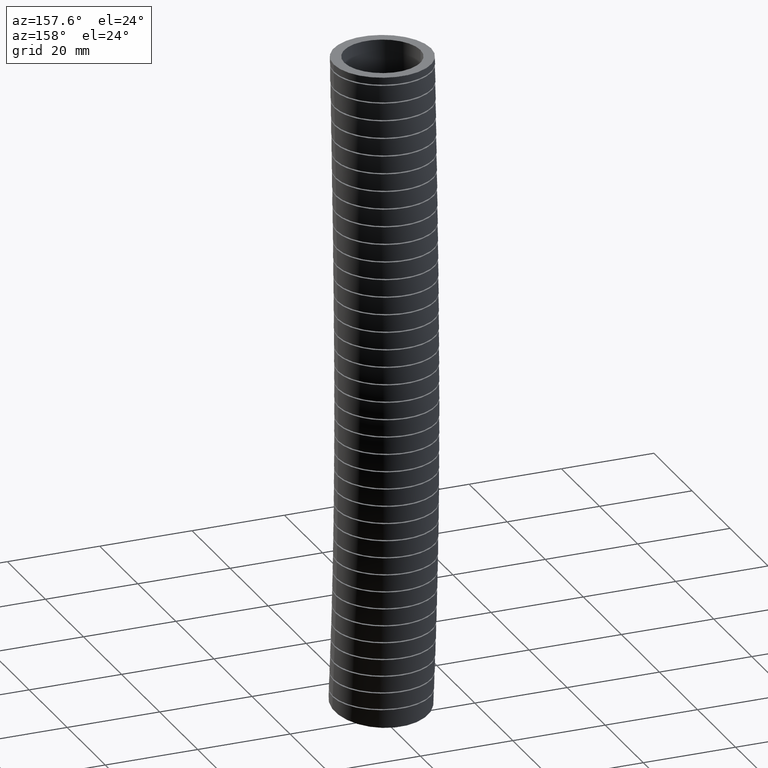
[diagram: clean part render]
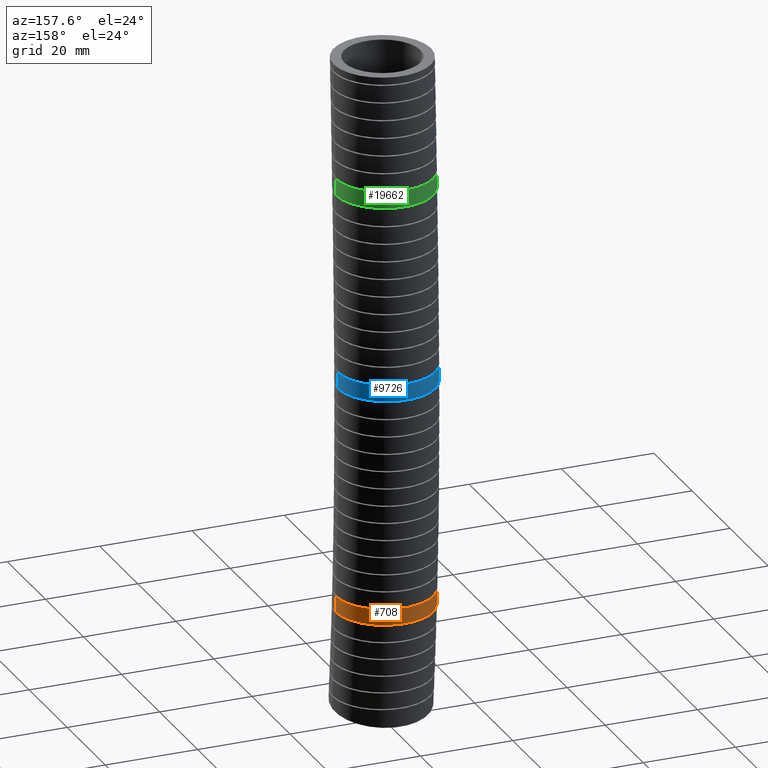
[diagram: same view with three faces highlighted in distinct colors, each labeled with its STEP entity id]
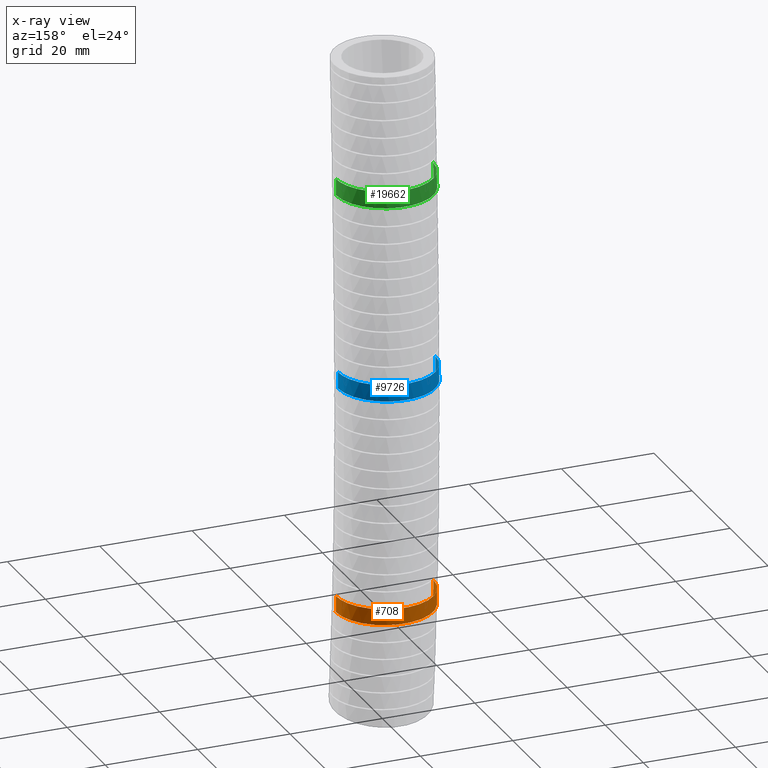
[diagram: x-ray of the same camera — body ghosted, the three highlighted faces saturated]
A machine part, auxiliary view with three faces highlighted in distinct colors.
The next image is the same camera in x-ray (body ghosted, the three faces saturated) — at least one of them is partly hidden behind the body in this view.
Their STEP definitions:

[orange] entity #708 — the highlighted face is a freeform B-spline surface patch.
#339 = EDGE_CURVE ( 'NONE', #343, #346, #17657, .T. ) ;
#340 = EDGE_CURVE ( 'NONE', #345, #342, #17659, .T. ) ;
#342 = VERTEX_POINT ( 'NONE', #17759 ) ;
#343 = VERTEX_POINT ( 'NONE', #17758 ) ;
#345 = VERTEX_POINT ( 'NONE', #17757 ) ;
#346 = VERTEX_POINT ( 'NONE', #17756 ) ;
#548 = ORIENTED_EDGE ( 'NONE', *, *, #339, .T. ) ;
#549 = EDGE_CURVE ( 'NONE', #346, #342, #8774, .T. ) ;
#562 = ORIENTED_EDGE ( 'NONE', *, *, #549, .T. ) ;
#708 = ADVANCED_FACE ( 'NONE', ( #10295 ), #10381, .T. ) ;
#855 = ORIENTED_EDGE ( 'NONE', *, *, #340, .F. ) ;
#856 = ORIENTED_EDGE ( 'NONE', *, *, #857, .T. ) ;
#857 = EDGE_CURVE ( 'NONE', #345, #343, #12175, .T. ) ;
#858 = EDGE_LOOP ( 'NONE', ( #855, #856, #548, #562 ) ) ;
#8774 = B_SPLINE_CURVE_WITH_KNOTS ( 'NONE', 3,
 ( #8838, #8837, #8836, #8835, #8834, #8833, #8832, #8831, #8830, #8829, #8828, #8827, #8826, #8825, #8824, #8823, #8822, #8821, #8820, #8819, #8818, #8817, #8816, #8815, #8814, #8813, #8812, #8811, #8810, #8809, #8808, #8807, #8806, #8805, #8804, #8803, #8802, #8801, #8800, #8799, #8798, #8797, #8796, #8795, #8794, #8793, #8792, #8791, #8790 ),
 .UNSPECIFIED., .F., .F.,
 ( 4, 2, 2, 2, 2, 2, 2, 2, 2, 2, 2, 2, 2, 2, 2, 2, 2, 2, 1, 2, 2, 2, 2, 2, 4 ),
 ( 0.0000000000000000000, 0.001041147008987531500, 0.002082294017975063900, 0.004164588035950128600, 0.005205735044937659000, 0.006246882053925190300, 0.008329176071900248500, 0.009370323080887773800, 0.01041147008987530100, 0.01249376410785035600, 0.01457605812582541000, 0.01561720513481293500, 0.01665835214380046200, 0.01874064616177552000, 0.01978179317076304800, 0.02082294017975057400, 0.02290523419772563100, 0.02394638120671315600, 0.02498752821570067800, 0.02602867522468820300, 0.02706982223367572800, 0.02915211625165077900, 0.03019326326063830800, 0.03123441026962583300, 0.03331670428760089000 ),
 .UNSPECIFIED. ) ;
#8790 = CARTESIAN_POINT ( 'NONE',  ( -0.4150000000000000900, 0.04081701023468729800, -4.707395241627943400 ) ) ;
#8791 = CARTESIAN_POINT ( 'NONE',  ( -0.4150000000000000900, 0.06800697390820816000, -4.707395241627942500 ) ) ;
#8792 = CARTESIAN_POINT ( 'NONE',  ( -0.4123563012833384400, 0.09491112007757024300, -4.707395241627942500 ) ) ;
#8793 = CARTESIAN_POINT ( 'NONE',  ( -0.4044478615926774800, 0.1348410625272052400, -4.707395241627940800 ) ) ;
#8794 = CARTESIAN_POINT ( 'NONE',  ( -0.4011317279633224700, 0.1481373083489800900, -4.707395241627940800 ) ) ;
#8795 = CARTESIAN_POINT ( 'NONE',  ( -0.3932067533778562700, 0.1743068520276444800, -4.707395241627940800 ) ) ;
#8796 = CARTESIAN_POINT ( 'NONE',  ( -0.3886295609808933500, 0.1870985361982571700, -4.707395241627942500 ) ) ;
#8797 = CARTESIAN_POINT ( 'NONE',  ( -0.3731083470228659900, 0.2246203007443294500, -4.707395241627941700 ) ) ;
#8798 = CARTESIAN_POINT ( 'NONE',  ( -0.3603917292220781800, 0.2485052179742328900, -4.707395241627940800 ) ) ;
#8799 = CARTESIAN_POINT ( 'NONE',  ( -0.3376660562749064200, 0.2825919401317162900, -4.707395241627940800 ) ) ;
#8800 = CARTESIAN_POINT ( 'NONE',  ( -0.3294922330510400300, 0.2936250451633727900, -4.707395241627942500 ) ) ;
#8801 = CARTESIAN_POINT ( 'NONE',  ( -0.3122763556951606000, 0.3146269943485065500, -4.707395241627939900 ) ) ;
#8802 = CARTESIAN_POINT ( 'NONE',  ( -0.2941132940661236900, 0.3346879547641040100, -4.707395241627940800 ) ) ;
#8803 = CARTESIAN_POINT ( 'NONE',  ( -0.2740813359758597100, 0.3528922431135804200, -4.707395241627943400 ) ) ;
#8804 = CARTESIAN_POINT ( 'NONE',  ( -0.2531006020468381000, 0.3701539615383028200, -4.707395241627945200 ) ) ;
#8805 = CARTESIAN_POINT ( 'NONE',  ( -0.2420709782478287800, 0.3783545783521027900, -4.707395241627942500 ) ) ;
#8806 = CARTESIAN_POINT ( 'NONE',  ( -0.2080466954896505700, 0.4011238773151452600, -4.707395241627941700 ) ) ;
#8807 = CARTESIAN_POINT ( 'NONE',  ( -0.1841892709419507000, 0.4138806755243756900, -4.707395241627942500 ) ) ;
#8808 = CARTESIAN_POINT ( 'NONE',  ( -0.1466823730929403300, 0.4294665320512826000, -4.707395241627942500 ) ) ;
#8809 = CARTESIAN_POINT ( 'NONE',  ( -0.1338912292143995300, 0.4340660300640978300, -4.707395241627942500 ) ) ;
#8810 = CARTESIAN_POINT ( 'NONE',  ( -0.1077126305270072900, 0.4420350408257248700, -4.707395241627942500 ) ) ;
#8811 = CARTESIAN_POINT ( 'NONE',  ( -0.09444184443918984800, 0.4453637391896951800, -4.707395241627942500 ) ) ;
#8812 = CARTESIAN_POINT ( 'NONE',  ( -0.05453971495836668100, 0.4533227377646073500, -4.707395241627942500 ) ) ;
#8813 = CARTESIAN_POINT ( 'NONE',  ( -0.02763729931559505800, 0.4560017018244805200, -4.707395241627939000 ) ) ;
#8814 = CARTESIAN_POINT ( 'NONE',  ( 0.01317188255898059700, 0.4560441218928426600, -4.707395241627939000 ) ) ;
#8815 = CARTESIAN_POINT ( 'NONE',  ( 0.02692084725737677400, 0.4553798311940797600, -4.707395241627945200 ) ) ;
#8816 = CARTESIAN_POINT ( 'NONE',  ( 0.05403777749031405500, 0.4527209051361985600, -4.707395241627945200 ) ) ;
#8817 = CARTESIAN_POINT ( 'NONE',  ( 0.06744676678879615900, 0.4507333974022575400, -4.707395241627940800 ) ) ;
#8818 = CARTESIAN_POINT ( 'NONE',  ( 0.1072353423186048600, 0.4428409180456179800, -4.707395241627942500 ) ) ;
#8819 = CARTESIAN_POINT ( 'NONE',  ( 0.1331809429875590000, 0.4350249459877976700, -4.707395241627942500 ) ) ;
#8820 = CARTESIAN_POINT ( 'NONE',  ( 0.1838620167422273500, 0.4140673763555431900, -4.707395241627942500 ) ) ;
#8821 = CARTESIAN_POINT ( 'NONE',  ( 0.2077500160068619100, 0.4012762535744008900, -4.707395241627942500 ) ) ;
#8822 = CARTESIAN_POINT ( 'NONE',  ( 0.2414928697514093500, 0.3787637969007614500, -4.707395241627941700 ) ) ;
#8823 = CARTESIAN_POINT ( 'NONE',  ( 0.2523897059176181700, 0.3707012247442839100, -4.707395241627942500 ) ) ;
#8824 = CARTESIAN_POINT ( 'NONE',  ( 0.2734659023656240100, 0.3534339091636033400, -4.707395241627940800 ) ) ;
#8825 = CARTESIAN_POINT ( 'NONE',  ( 0.2836696173641845000, 0.3441948700679552400, -4.707395241627942500 ) ) ;
#8826 = CARTESIAN_POINT ( 'NONE',  ( 0.3125347473832298400, 0.3153465104744271900, -4.707395241627943400 ) ) ;
#8827 = CARTESIAN_POINT ( 'NONE',  ( 0.3296921898496516500, 0.2944535289469431500, -4.707395241627943400 ) ) ;
#8828 = CARTESIAN_POINT ( 'NONE',  ( 0.3523286669888924800, 0.2606462549086767100, -4.707395241627942500 ) ) ;
#8829 = CARTESIAN_POINT ( 'NONE',  ( 0.3593754969366614900, 0.2489219873261059300, -4.707395241627944300 ) ) ;
#8830 = CARTESIAN_POINT ( 'NONE',  ( 0.3722912040305276800, 0.2247945689661616500, -4.707395241627943400 ) ) ;
#8831 = CARTESIAN_POINT ( 'NONE',  ( 0.3781040608558449100, 0.2125063755123599300, -4.707395241627943400 ) ) ;
#8832 = CARTESIAN_POINT ( 'NONE',  ( 0.3936684893555259500, 0.1749895198966842400, -4.707395241627943400 ) ) ;
#8833 = CARTESIAN_POINT ( 'NONE',  ( 0.4015636312575287500, 0.1491147470254116400, -4.707395241627941700 ) ) ;
#8834 = CARTESIAN_POINT ( 'NONE',  ( 0.4095977387978261800, 0.1089770429997874000, -4.707395241627943400 ) ) ;
#8835 = CARTESIAN_POINT ( 'NONE',  ( 0.4116282601369071200, 0.09537883306055343300, -4.707395241627940800 ) ) ;
#8836 = CARTESIAN_POINT ( 'NONE',  ( 0.4143229667889528100, 0.06818196928147739200, -4.707395241627942500 ) ) ;
#8837 = CARTESIAN_POINT ( 'NONE',  ( 0.4150000000000001500, 0.05452769207009557100, -4.707395241436215900 ) ) ;
#8838 = CARTESIAN_POINT ( 'NONE',  ( 0.4150000000000000900, 0.04081701025929167200, -4.707395241436215900 ) ) ;
#10295 = FACE_OUTER_BOUND ( 'NONE', #858, .T. ) ;
#10354 = CARTESIAN_POINT ( 'NONE',  ( -0.4150000000000000400, -0.02999999999999996800, -5.569999999999998500 ) ) ;
#10355 = CARTESIAN_POINT ( 'NONE',  ( -0.4150000000000000900, -0.01243844818931298000, -5.380037381098891700 ) ) ;
#10356 = CARTESIAN_POINT ( 'NONE',  ( -0.4150000000000000900, 0.06281132015026594200, -4.566063580857106200 ) ) ;
#10357 = CARTESIAN_POINT ( 'NONE',  ( -0.4149999999999999200, 0.1218071073635320100, -2.711443563840852700 ) ) ;
#10358 = CARTESIAN_POINT ( 'NONE',  ( -0.4150000000000000900, 0.04680663936954139500, -1.041922460934817000 ) ) ;
#10359 = CARTESIAN_POINT ( 'NONE',  ( -0.4150000000000000900, 5.082284216461516900E-017, 0.0000000000000000000 ) ) ;
#10360 = CARTESIAN_POINT ( 'NONE',  ( -0.4150000000000000900, -0.8522141346493592500, -5.456580791826050700 ) ) ;
#10361 = CARTESIAN_POINT ( 'NONE',  ( -0.4150000000000002000, -0.8352887892759974800, -5.273085195688222100 ) ) ;
#10362 = CARTESIAN_POINT ( 'NONE',  ( -0.4150000000000000900, -0.7627651118616902700, -4.486822042548080700 ) ) ;
#10363 = CARTESIAN_POINT ( 'NONE',  ( -0.4150000000000000400, -0.7092540105308221500, -2.690209918970475100 ) ) ;
#10364 = CARTESIAN_POINT ( 'NONE',  ( -0.4150000000000000900, -0.7836011148550242600, -1.033763039210906500 ) ) ;
#10365 = CARTESIAN_POINT ( 'NONE',  ( -0.4150000000000000900, -0.8300000000000001800, 0.0000000000000000000 ) ) ;
#10366 = CARTESIAN_POINT ( 'NONE',  ( 0.4150000000000000400, -0.8522141346493592500, -5.456580791826050700 ) ) ;
#10367 = CARTESIAN_POINT ( 'NONE',  ( 0.4150000000000002000, -0.8352887892759974800, -5.273085195688222100 ) ) ;
#10368 = CARTESIAN_POINT ( 'NONE',  ( 0.4150000000000000400, -0.7627651118616902700, -4.486822042548080700 ) ) ;
#10369 = CARTESIAN_POINT ( 'NONE',  ( 0.4150000000000000400, -0.7092540105308221500, -2.690209918970475100 ) ) ;
#10370 = CARTESIAN_POINT ( 'NONE',  ( 0.4150000000000000900, -0.7836011148550242600, -1.033763039210906500 ) ) ;
#10371 = CARTESIAN_POINT ( 'NONE',  ( 0.4150000000000000900, -0.8300000000000001800, 0.0000000000000000000 ) ) ;
#10372 = CARTESIAN_POINT ( 'NONE',  ( 0.4150000000000000400, -0.03000000000000001600, -5.569999999999998500 ) ) ;
#10373 = CARTESIAN_POINT ( 'NONE',  ( 0.4150000000000000900, -0.01243844818931303500, -5.380037381098891700 ) ) ;
#10374 = CARTESIAN_POINT ( 'NONE',  ( 0.4150000000000000900, 0.06281132015026588700, -4.566063580857106200 ) ) ;
#10375 = CARTESIAN_POINT ( 'NONE',  ( 0.4149999999999999200, 0.1218071073635319700, -2.711443563840852700 ) ) ;
#10376 = CARTESIAN_POINT ( 'NONE',  ( 0.4150000000000000900, 0.04680663936954134600, -1.041922460934817000 ) ) ;
#10377 = CARTESIAN_POINT ( 'NONE',  ( 0.4150000000000000900, 0.0000000000000000000, 0.0000000000000000000 ) ) ;
#10381 =( BOUNDED_SURFACE ( )  B_SPLINE_SURFACE ( 3, 3, ( 
 ( #10377, #10376, #10375, #10374, #10373, #10372 ),
 ( #10371, #10370, #10369, #10368, #10367, #10366 ),
 ( #10365, #10364, #10363, #10362, #10361, #10360 ),
 ( #10359, #10358, #10357, #10356, #10355, #10354 ),
 ( #10414, #10413, #10412, #10411, #10410, #10409 ),
 ( #10408, #10407, #10406, #10405, #10404, #10403 ),
 ( #10402, #10401, #10400, #10399, #10398, #10397 ) ),
 .UNSPECIFIED., .F., .F., .F. ) 
 B_SPLINE_SURFACE_WITH_KNOTS ( ( 4, 3, 4 ),
 ( 4, 1, 1, 4 ),
 ( 0.0000000000000000000, 0.5000000000000000000, 1.000000000000000000 ),
 ( 0.0000000000000000000, 0.5600000000000000500, 0.8973141982067990300, 1.000000000000000000 ),
 .UNSPECIFIED. ) 
 GEOMETRIC_REPRESENTATION_ITEM ( )  RATIONAL_B_SPLINE_SURFACE ( (
 ( 1.000000000000000000, 1.000000000000000000, 1.000000000000000000, 1.000000000000000000, 1.000000000000000000, 1.000000000000000000),
 ( 0.3333333333333333100, 0.3333333333333333100, 0.3333333333333333100, 0.3333333333333333100, 0.3333333333333332600, 0.3333333333333333100),
 ( 0.3333333333333333100, 0.3333333333333333100, 0.3333333333333333100, 0.3333333333333333100, 0.3333333333333332600, 0.3333333333333333100),
 ( 1.000000000000000000, 1.000000000000000000, 1.000000000000000000, 1.000000000000000000, 1.000000000000000000, 1.000000000000000000),
 ( 0.3333333333333333100, 0.3333333333333333100, 0.3333333333333333100, 0.3333333333333333100, 0.3333333333333332600, 0.3333333333333333100),
 ( 0.3333333333333333100, 0.3333333333333333100, 0.3333333333333333100, 0.3333333333333333100, 0.3333333333333332600, 0.3333333333333333100),
 ( 1.000000000000000000, 1.000000000000000000, 1.000000000000000000, 1.000000000000000000, 1.000000000000000000, 1.000000000000000000) ) ) 
 REPRESENTATION_ITEM ( '' )  SURFACE ( )  );
#10397 = CARTESIAN_POINT ( 'NONE',  ( 0.4150000000000000400, -0.03000000000000001600, -5.569999999999998500 ) ) ;
#10398 = CARTESIAN_POINT ( 'NONE',  ( 0.4150000000000000900, -0.01243844818931303500, -5.380037381098891700 ) ) ;
#10399 = CARTESIAN_POINT ( 'NONE',  ( 0.4150000000000000900, 0.06281132015026588700, -4.566063580857106200 ) ) ;
#10400 = CARTESIAN_POINT ( 'NONE',  ( 0.4149999999999999200, 0.1218071073635319700, -2.711443563840852700 ) ) ;
#10401 = CARTESIAN_POINT ( 'NONE',  ( 0.4150000000000000900, 0.04680663936954134600, -1.041922460934817000 ) ) ;
#10402 = CARTESIAN_POINT ( 'NONE',  ( 0.4150000000000000900, 0.0000000000000000000, 0.0000000000000000000 ) ) ;
#10403 = CARTESIAN_POINT ( 'NONE',  ( 0.4150000000000000400, 0.7922141346493595200, -5.683419208173947200 ) ) ;
#10404 = CARTESIAN_POINT ( 'NONE',  ( 0.4150000000000002000, 0.8104118928973711400, -5.486989566509566700 ) ) ;
#10405 = CARTESIAN_POINT ( 'NONE',  ( 0.4150000000000000400, 0.8883877521622221000, -4.645305119166129900 ) ) ;
#10406 = CARTESIAN_POINT ( 'NONE',  ( 0.4150000000000000400, 0.9528682252578860600, -2.732677208711230800 ) ) ;
#10407 = CARTESIAN_POINT ( 'NONE',  ( 0.4150000000000000900, 0.8772143935941071300, -1.050081882658727000 ) ) ;
#10408 = CARTESIAN_POINT ( 'NONE',  ( 0.4150000000000000900, 0.8300000000000001800, 0.0000000000000000000 ) ) ;
#10409 = CARTESIAN_POINT ( 'NONE',  ( -0.4149999999999999200, 0.7922141346493595200, -5.683419208173947200 ) ) ;
#10410 = CARTESIAN_POINT ( 'NONE',  ( -0.4150000000000000400, 0.8104118928973711400, -5.486989566509566700 ) ) ;
#10411 = CARTESIAN_POINT ( 'NONE',  ( -0.4149999999999999200, 0.8883877521622221000, -4.645305119166129900 ) ) ;
#10412 = CARTESIAN_POINT ( 'NONE',  ( -0.4149999999999999200, 0.9528682252578860600, -2.732677208711230800 ) ) ;
#10413 = CARTESIAN_POINT ( 'NONE',  ( -0.4149999999999999200, 0.8772143935941071300, -1.050081882658727000 ) ) ;
#10414 = CARTESIAN_POINT ( 'NONE',  ( -0.4150000000000000400, 0.8300000000000001800, 0.0000000000000000000 ) ) ;
#12135 = CARTESIAN_POINT ( 'NONE',  ( 0.3722684610645111700, 0.2332683081625167000, -4.567673217164060200 ) ) ;
#12136 = CARTESIAN_POINT ( 'NONE',  ( 0.3594303061749826700, 0.2572452945957425800, -4.567673217164060200 ) ) ;
#12137 = CARTESIAN_POINT ( 'NONE',  ( 0.3523450792936664900, 0.2690421450294065400, -4.567673217164061100 ) ) ;
#12138 = CARTESIAN_POINT ( 'NONE',  ( 0.3295998691731651900, 0.3029910542847428200, -4.567673217164060200 ) ) ;
#12139 = CARTESIAN_POINT ( 'NONE',  ( 0.3124169693989286600, 0.3238648993903469600, -4.567673217164059300 ) ) ;
#12140 = CARTESIAN_POINT ( 'NONE',  ( 0.2740790252657876500, 0.3621531649971501100, -4.567673217164060200 ) ) ;
#12141 = CARTESIAN_POINT ( 'NONE',  ( 0.2526992340359857100, 0.3796673831239436000, -4.567673217164061100 ) ) ;
#12142 = CARTESIAN_POINT ( 'NONE',  ( 0.2076086605013463800, 0.4097210385693591000, -4.567673217164060200 ) ) ;
#12143 = CARTESIAN_POINT ( 'NONE',  ( 0.1837613206214919500, 0.4224574915166682800, -4.567673217164058400 ) ) ;
#12144 = CARTESIAN_POINT ( 'NONE',  ( 0.1460059659844959700, 0.4380716118572955400, -4.567673217164059300 ) ) ;
#12145 = CARTESIAN_POINT ( 'NONE',  ( 0.1330441156806382900, 0.4426963912407248000, -4.567673217164062800 ) ) ;
#12146 = CARTESIAN_POINT ( 'NONE',  ( 0.1070046466246280100, 0.4505641135580685800, -4.567673217164062800 ) ) ;
#12147 = CARTESIAN_POINT ( 'NONE',  ( 0.08072536158652249300, 0.4571106652502296400, -4.567673217164056600 ) ) ;
#12148 = CARTESIAN_POINT ( 'NONE',  ( 0.05397551484683359200, 0.4610648446908438600, -4.567673217164060200 ) ) ;
#12149 = CARTESIAN_POINT ( 'NONE',  ( 0.02698808422078163500, 0.4637101503485838700, -4.567673217164060200 ) ) ;
#12150 = CARTESIAN_POINT ( 'NONE',  ( 0.01333054201050641400, 0.4643781778813070300, -4.567673217164061100 ) ) ;
#12151 = CARTESIAN_POINT ( 'NONE',  ( -0.02771295951676167000, 0.4643434989314132500, -4.567673217164060200 ) ) ;
#12152 = CARTESIAN_POINT ( 'NONE',  ( -0.05464887894265929600, 0.4616408000629539400, -4.567673217164063700 ) ) ;
#12153 = CARTESIAN_POINT ( 'NONE',  ( -0.09443502914434187500, 0.4537049602480789900, -4.567673217164062800 ) ) ;
#12154 = CARTESIAN_POINT ( 'NONE',  ( -0.1075933710863040800, 0.4504079813263332000, -4.567673217164062800 ) ) ;
#12155 = CARTESIAN_POINT ( 'NONE',  ( -0.1336971707832337000, 0.4424762651548180300, -4.567673217164061100 ) ) ;
#12156 = CARTESIAN_POINT ( 'NONE',  ( -0.1466332507127637300, 0.4378341380517677400, -4.567673217164061100 ) ) ;
#12157 = CARTESIAN_POINT ( 'NONE',  ( -0.1842649853474392600, 0.4222037287118722800, -4.567673217164061100 ) ) ;
#12158 = CARTESIAN_POINT ( 'NONE',  ( -0.2080907892201937200, 0.4094467412130459200, -4.567673217164062800 ) ) ;
#12159 = CARTESIAN_POINT ( 'NONE',  ( -0.2419406151438543400, 0.3868138701018127300, -4.567673217164062800 ) ) ;
#12160 = CARTESIAN_POINT ( 'NONE',  ( -0.2529613668211622100, 0.3786361101811877000, -4.567673217164060200 ) ) ;
#12161 = CARTESIAN_POINT ( 'NONE',  ( -0.2740595350585516300, 0.3612939121101526600, -4.567673217164060200 ) ) ;
#12162 = CARTESIAN_POINT ( 'NONE',  ( -0.2841060913131752700, 0.3521656142059042500, -4.567673217164063700 ) ) ;
#12163 = CARTESIAN_POINT ( 'NONE',  ( -0.3127801838231207800, 0.3234473420812553600, -4.567673217164061900 ) ) ;
#12164 = CARTESIAN_POINT ( 'NONE',  ( -0.3299562002827746100, 0.3025367779872047400, -4.567673217164060200 ) ) ;
#12165 = CARTESIAN_POINT ( 'NONE',  ( -0.3527204152820563900, 0.2684417108519828200, -4.567673217164058400 ) ) ;
#12166 = CARTESIAN_POINT ( 'NONE',  ( -0.3597559435885097600, 0.2566791396009282000, -4.567673217164061100 ) ) ;
#12167 = CARTESIAN_POINT ( 'NONE',  ( -0.3725282176276579800, 0.2327391928138752000, -4.567673217164061900 ) ) ;
#12168 = CARTESIAN_POINT ( 'NONE',  ( -0.3840735318393356800, 0.2082793366719148900, -4.567673217164054800 ) ) ;
#12169 = CARTESIAN_POINT ( 'NONE',  ( -0.3931940204858748700, 0.1827919900880433900, -4.567673217164061900 ) ) ;
#12170 = CARTESIAN_POINT ( 'NONE',  ( -0.4010814816012254200, 0.1567821630333609300, -4.567673217164062800 ) ) ;
#12171 = CARTESIAN_POINT ( 'NONE',  ( -0.4044207219606492700, 0.1434404233182196800, -4.567673217164061100 ) ) ;
#12172 = CARTESIAN_POINT ( 'NONE',  ( -0.4123754224753771200, 0.1033250620786047600, -4.567673217164059300 ) ) ;
#12173 = CARTESIAN_POINT ( 'NONE',  ( -0.4150000000000001500, 0.07641140567915075100, -4.567673217164061900 ) ) ;
#12174 = CARTESIAN_POINT ( 'NONE',  ( -0.4150000000000000900, 0.04933109456037250400, -4.567673217164062800 ) ) ;
#12175 = B_SPLINE_CURVE_WITH_KNOTS ( 'NONE', 3,
 ( #12174, #12173, #12172, #12171, #12170, #12169, #12168, #12167, #12166, #12165, #12164, #12163, #12162, #12161, #12160, #12159, #12158, #12157, #12156, #12155, #12154, #12153, #12152, #12151, #12150, #12149, #12148, #12147, #12146, #12145, #12144, #12143, #12142, #12141, #12140, #12139, #12138, #12137, #12136, #12135, #12214, #12213, #12212, #12211, #12210, #12209 ),
 .UNSPECIFIED., .F., .F.,
 ( 4, 2, 2, 1, 2, 2, 2, 2, 2, 2, 2, 2, 2, 2, 1, 2, 2, 2, 2, 2, 2, 2, 2, 4 ),
 ( 0.03295822080402095700, 0.03501759458293580300, 0.03604728147239322900, 0.03707696836185064800, 0.03810665525130807500, 0.03913634214076549400, 0.04119571591968034000, 0.04222540280913776600, 0.04325508969859519200, 0.04531446347751003100, 0.04634415036696745700, 0.04737383725642487600, 0.04943321103533972200, 0.05046289792479714800, 0.05149258481425456800, 0.05252227170371198700, 0.05355195859316941300, 0.05561133237208425900, 0.05767070615099910400, 0.05973007992991394300, 0.06075976681937136900, 0.06178945370882878800, 0.06384882748774364800, 0.06590820126665848700 ),
 .UNSPECIFIED. ) ;
#12209 = CARTESIAN_POINT ( 'NONE',  ( 0.4150000000000000900, 0.04933109456026308500, -4.567673217165008700 ) ) ;
#12210 = CARTESIAN_POINT ( 'NONE',  ( 0.4150000000000000900, 0.07674611036893014300, -4.567673217165009600 ) ) ;
#12211 = CARTESIAN_POINT ( 'NONE',  ( 0.4123104194281064200, 0.1038770058862356100, -4.567673217164061100 ) ) ;
#12212 = CARTESIAN_POINT ( 'NONE',  ( 0.4015728093850592900, 0.1575726969687361300, -4.567673217164061100 ) ) ;
#12213 = CARTESIAN_POINT ( 'NONE',  ( 0.3936163521503787100, 0.1835896590317120700, -4.567673217164061100 ) ) ;
#12214 = CARTESIAN_POINT ( 'NONE',  ( 0.3780642412329488500, 0.2210314595777394800, -4.567673217164060200 ) ) ;
#17657 = B_SPLINE_CURVE_WITH_KNOTS ( 'NONE', 3,
 ( #17663, #17662, #17661, #17660 ),
 .UNSPECIFIED., .F., .F.,
 ( 4, 4 ),
 ( 0.8194947224877287000, 0.8446376607462576800 ),
 .UNSPECIFIED. ) ;
#17659 = B_SPLINE_CURVE_WITH_KNOTS ( 'NONE', 3,
 ( #17727, #17726, #17725, #17724 ),
 .UNSPECIFIED., .F., .F.,
 ( 4, 4 ),
 ( 0.8194947224875578400, 0.8446376607809048500 ),
 .UNSPECIFIED. ) ;
#17660 = CARTESIAN_POINT ( 'NONE',  ( 0.4150000000000000900, 0.04081701025929167200, -4.707395241436215900 ) ) ;
#17661 = CARTESIAN_POINT ( 'NONE',  ( 0.4150000000000001500, 0.04380503960033627800, -4.660827499190193500 ) ) ;
#17662 = CARTESIAN_POINT ( 'NONE',  ( 0.4150000000000000900, 0.04664156438956274700, -4.614253428303644700 ) ) ;
#17663 = CARTESIAN_POINT ( 'NONE',  ( 0.4150000000000000900, 0.04933109456026308500, -4.567673217165008700 ) ) ;
#17724 = CARTESIAN_POINT ( 'NONE',  ( -0.4150000000000000900, 0.04081701023468729800, -4.707395241627943400 ) ) ;
#17725 = CARTESIAN_POINT ( 'NONE',  ( -0.4150000000000000900, 0.04380503959253912600, -4.660827499318236800 ) ) ;
#17726 = CARTESIAN_POINT ( 'NONE',  ( -0.4150000000000000900, 0.04664156438589514600, -4.614253428367200100 ) ) ;
#17727 = CARTESIAN_POINT ( 'NONE',  ( -0.4150000000000000900, 0.04933109456037250400, -4.567673217164062800 ) ) ;
#17756 = CARTESIAN_POINT ( 'NONE',  ( 0.4150000000000000900, 0.04081701025929167200, -4.707395241436215900 ) ) ;
#17757 = CARTESIAN_POINT ( 'NONE',  ( -0.4150000000000000900, 0.04933109456037250400, -4.567673217164062800 ) ) ;
#17758 = CARTESIAN_POINT ( 'NONE',  ( 0.4150000000000000900, 0.04933109456026308500, -4.567673217165008700 ) ) ;
#17759 = CARTESIAN_POINT ( 'NONE',  ( -0.4150000000000000900, 0.04081701023468729800, -4.707395241627943400 ) ) ;

[blue] entity #9726 — the highlighted face is a freeform B-spline surface patch.
#3709 = B_SPLINE_CURVE_WITH_KNOTS ( 'NONE', 3,
 ( #3726, #3725, #3724, #3723 ),
 .UNSPECIFIED., .F., .F.,
 ( 4, 4 ),
 ( 0.4693296114565723700, 0.4944473827982828200 ),
 .UNSPECIFIED. ) ;
#3710 = CARTESIAN_POINT ( 'NONE',  ( -0.4150000000000000900, 0.08968345054271666100, -2.758437796094407500 ) ) ;
#3711 = CARTESIAN_POINT ( 'NONE',  ( 0.4150000000000000900, 0.08968345053978009400, -2.758437795902524100 ) ) ;
#3723 = CARTESIAN_POINT ( 'NONE',  ( 0.4150000000000000900, 0.08968345053978009400, -2.758437795902524100 ) ) ;
#3724 = CARTESIAN_POINT ( 'NONE',  ( 0.4150000000000000400, 0.08932641115617297200, -2.711777060696217000 ) ) ;
#3725 = CARTESIAN_POINT ( 'NONE',  ( 0.4150000000000000400, 0.08888085908836913800, -2.665112628142432000 ) ) ;
#3726 = CARTESIAN_POINT ( 'NONE',  ( 0.4150000000000000900, 0.08835129075206960000, -2.618444686065264400 ) ) ;
#3757 = CARTESIAN_POINT ( 'NONE',  ( 0.4150000000000000900, 0.08835129075206960000, -2.618444686065264400 ) ) ;
#3759 = CARTESIAN_POINT ( 'NONE',  ( -0.4150000000000000900, 0.08835129075642331200, -2.618444686257095800 ) ) ;
#3764 = CARTESIAN_POINT ( 'NONE',  ( -0.4150000000000000900, 0.08968345054271666100, -2.758437796094407500 ) ) ;
#3765 = CARTESIAN_POINT ( 'NONE',  ( -0.4150000000000000900, 0.08932641115788386700, -2.711777060888098700 ) ) ;
#3766 = CARTESIAN_POINT ( 'NONE',  ( -0.4150000000000000900, 0.08888085909031627500, -2.665112628334301200 ) ) ;
#3767 = CARTESIAN_POINT ( 'NONE',  ( -0.4150000000000000900, 0.08835129075642331200, -2.618444686257095800 ) ) ;
#3770 = B_SPLINE_CURVE_WITH_KNOTS ( 'NONE', 3,
 ( #3767, #3766, #3765, #3764 ),
 .UNSPECIFIED., .F., .F.,
 ( 4, 4 ),
 ( 0.4693296114909928900, 0.4944473828327154400 ),
 .UNSPECIFIED. ) ;
#9575 = EDGE_LOOP ( 'NONE', ( #9638, #9680, #9646, #12021 ) ) ;
#9606 = EDGE_CURVE ( 'NONE', #16479, #16480, #14554, .T. ) ;
#9638 = ORIENTED_EDGE ( 'NONE', *, *, #16473, .F. ) ;
#9646 = ORIENTED_EDGE ( 'NONE', *, *, #16462, .T. ) ;
#9680 = ORIENTED_EDGE ( 'NONE', *, *, #9606, .T. ) ;
#9726 = ADVANCED_FACE ( 'NONE', ( #14556 ), #14650, .T. ) ;
#11925 = EDGE_CURVE ( 'NONE', #16469, #16471, #14982, .T. ) ;
#12021 = ORIENTED_EDGE ( 'NONE', *, *, #11925, .T. ) ;
#14343 = CARTESIAN_POINT ( 'NONE',  ( 0.4150000000000000400, 0.7922141346493595200, -5.683419208173947200 ) ) ;
#14344 = CARTESIAN_POINT ( 'NONE',  ( 0.4150000000000002000, 0.8104118928973711400, -5.486989566509566700 ) ) ;
#14550 = CARTESIAN_POINT ( 'NONE',  ( -0.4150000000000000400, 0.1154213152286465800, -2.618444686257094900 ) ) ;
#14551 = CARTESIAN_POINT ( 'NONE',  ( -0.4150000000000000900, 0.08835129075642331200, -2.618444686257095800 ) ) ;
#14554 = B_SPLINE_CURVE_WITH_KNOTS ( 'NONE', 3,
 ( #14551, #14550, #14643, #14642, #14641, #14640, #14639, #14638, #14637, #14636, #14635, #14634, #14633, #14632, #14631, #14630, #14629, #14628, #14627, #14626, #14625, #14624, #14623, #14622, #14621, #14620, #14619, #14618, #14617, #14616, #14615, #14614, #14613, #14612, #14611, #14610, #14609, #14608, #14607, #14606, #14605, #14604, #14603, #14602, #14601 ),
 .UNSPECIFIED., .F., .F.,
 ( 4, 2, 2, 1, 2, 2, 2, 2, 2, 2, 2, 2, 2, 2, 2, 2, 2, 2, 2, 2, 2, 2, 4 ),
 ( 0.03294432520434449600, 0.03500290822632739400, 0.03603219973731884600, 0.03706149124831029100, 0.03809078275930174300, 0.03912007427029318800, 0.04117865729227609300, 0.04220794880326753800, 0.04323724031425899000, 0.04529582333624188700, 0.04632511484723334000, 0.04735440635822478500, 0.04941298938020768900, 0.05147157240219059300, 0.05250086391318203900, 0.05353015542417348400, 0.05558873844615638800, 0.05764732146813929300, 0.05970590449012219700, 0.06073519600111364200, 0.06176448751210508700, 0.06382307053408797800, 0.06588165355607088200 ),
 .UNSPECIFIED. ) ;
#14556 = FACE_OUTER_BOUND ( 'NONE', #9575, .T. ) ;
#14601 = CARTESIAN_POINT ( 'NONE',  ( 0.4150000000000000900, 0.08835129075206960000, -2.618444686065264400 ) ) ;
#14602 = CARTESIAN_POINT ( 'NONE',  ( 0.4150000000000000900, 0.1157558859847361600, -2.618444686065264800 ) ) ;
#14603 = CARTESIAN_POINT ( 'NONE',  ( 0.4123080781927198600, 0.1428759706389969000, -2.618444686257098000 ) ) ;
#14604 = CARTESIAN_POINT ( 'NONE',  ( 0.4015616510124612200, 0.1965494606947470200, -2.618444686257098500 ) ) ;
#14605 = CARTESIAN_POINT ( 'NONE',  ( 0.3935996927891354800, 0.2225518484600519900, -2.618444686257096300 ) ) ;
#14606 = CARTESIAN_POINT ( 'NONE',  ( 0.3780379766072810000, 0.2599719945592607300, -2.618444686257095400 ) ) ;
#14607 = CARTESIAN_POINT ( 'NONE',  ( 0.3722388022567760200, 0.2722014029975160000, -2.618444686257096300 ) ) ;
#14608 = CARTESIAN_POINT ( 'NONE',  ( 0.3593935957335975300, 0.2961631081296652900, -2.618444686257096700 ) ) ;
#14609 = CARTESIAN_POINT ( 'NONE',  ( 0.3523047691601167700, 0.3079518738175449100, -2.618444686257095800 ) ) ;
#14610 = CARTESIAN_POINT ( 'NONE',  ( 0.3295507064458170200, 0.3418740264129502300, -2.618444686257096300 ) ) ;
#14611 = CARTESIAN_POINT ( 'NONE',  ( 0.3123628462140872800, 0.3627292257231744500, -2.618444686257095800 ) ) ;
#14612 = CARTESIAN_POINT ( 'NONE',  ( 0.2740183731474175600, 0.4009799533101681100, -2.618444686257095800 ) ) ;
#14613 = CARTESIAN_POINT ( 'NONE',  ( 0.2526369935036739100, 0.4184751235677051700, -2.618444686257097600 ) ) ;
#14614 = CARTESIAN_POINT ( 'NONE',  ( 0.2075488134790904600, 0.4484931418421476100, -2.618444686257096700 ) ) ;
#14615 = CARTESIAN_POINT ( 'NONE',  ( 0.1837053018946495400, 0.4612129030893049600, -2.618444686257095400 ) ) ;
#14616 = CARTESIAN_POINT ( 'NONE',  ( 0.1459606480629105400, 0.4768053731575828700, -2.618444686257095400 ) ) ;
#14617 = CARTESIAN_POINT ( 'NONE',  ( 0.1330021993312272600, 0.4814239063909645500, -2.618444686257096300 ) ) ;
#14618 = CARTESIAN_POINT ( 'NONE',  ( 0.1069695626363984900, 0.4892809908688685000, -2.618444686257097600 ) ) ;
#14619 = CARTESIAN_POINT ( 'NONE',  ( 0.09383396201674687500, 0.4925496656931404000, -2.618444686257096300 ) ) ;
#14620 = CARTESIAN_POINT ( 'NONE',  ( 0.05407616092879015400, 0.5004139686557307300, -2.618444686257096700 ) ) ;
#14621 = CARTESIAN_POINT ( 'NONE',  ( 0.02701243662865882700, 0.5030866359033237000, -2.618444686257096300 ) ) ;
#14622 = CARTESIAN_POINT ( 'NONE',  ( -0.02769667781980230500, 0.5030415649021136000, -2.618444686257095800 ) ) ;
#14623 = CARTESIAN_POINT ( 'NONE',  ( -0.05462361344858560100, 0.5003429281378085600, -2.618444686257094900 ) ) ;
#14624 = CARTESIAN_POINT ( 'NONE',  ( -0.09439474801073259600, 0.4924195227036780000, -2.618444686257095800 ) ) ;
#14625 = CARTESIAN_POINT ( 'NONE',  ( -0.1075478262254391100, 0.4891277533115640500, -2.618444686257096300 ) ) ;
#14626 = CARTESIAN_POINT ( 'NONE',  ( -0.1336406114052718900, 0.4812089146343496700, -2.618444686257095800 ) ) ;
#14627 = CARTESIAN_POINT ( 'NONE',  ( -0.1465752300412047900, 0.4765730231305757600, -2.618444686257097600 ) ) ;
#14628 = CARTESIAN_POINT ( 'NONE',  ( -0.1842025855420006700, 0.4609628840768197900, -2.618444686257097600 ) ) ;
#14629 = CARTESIAN_POINT ( 'NONE',  ( -0.2080256151052428100, 0.4482220938497517600, -2.618444686257096300 ) ) ;
#14630 = CARTESIAN_POINT ( 'NONE',  ( -0.2418718479048594400, 0.4256181849465369100, -2.618444686257096300 ) ) ;
#14631 = CARTESIAN_POINT ( 'NONE',  ( -0.2528905809531848400, 0.4174518027741021500, -2.618444686257095400 ) ) ;
#14632 = CARTESIAN_POINT ( 'NONE',  ( -0.2739934088068466400, 0.4001264106935791300, -2.618444686257095800 ) ) ;
#14633 = CARTESIAN_POINT ( 'NONE',  ( -0.2840423505544499800, 0.3910067313496508000, -2.618444686257098900 ) ) ;
#14634 = CARTESIAN_POINT ( 'NONE',  ( -0.3127237712927726800, 0.3623149520849117100, -2.618444686257098900 ) ) ;
#14635 = CARTESIAN_POINT ( 'NONE',  ( -0.3299049039245676700, 0.3414228963908572700, -2.618444686257095800 ) ) ;
#14636 = CARTESIAN_POINT ( 'NONE',  ( -0.3526771321195081900, 0.3073568845972067300, -2.618444686257095800 ) ) ;
#14637 = CARTESIAN_POINT ( 'NONE',  ( -0.3597175142349602900, 0.2956006428322953100, -2.618444686257096300 ) ) ;
#14638 = CARTESIAN_POINT ( 'NONE',  ( -0.3724975725416356200, 0.2716749624760325100, -2.618444686257096700 ) ) ;
#14639 = CARTESIAN_POINT ( 'NONE',  ( -0.3840501937727977000, 0.2472291499812012400, -2.618444686257096700 ) ) ;
#14640 = CARTESIAN_POINT ( 'NONE',  ( -0.3931769270151721500, 0.2217553562295664600, -2.618444686257096300 ) ) ;
#14641 = CARTESIAN_POINT ( 'NONE',  ( -0.4010700047290826100, 0.1957587952411606300, -2.618444686257096300 ) ) ;
#14642 = CARTESIAN_POINT ( 'NONE',  ( -0.4044118146196165100, 0.1824234182280830800, -2.618444686257096700 ) ) ;
#14643 = CARTESIAN_POINT ( 'NONE',  ( -0.4123731302660508200, 0.1423243825297688700, -2.618444686257096300 ) ) ;
#14650 =( BOUNDED_SURFACE ( )  B_SPLINE_SURFACE ( 3, 3, ( 
 ( #14696, #14695, #14694, #14693, #14692, #14691 ),
 ( #14690, #14689, #14688, #14687, #14686, #14685 ),
 ( #14684, #14683, #14682, #14681, #14679, #14678 ),
 ( #14677, #14676, #14675, #14674, #14673, #14672 ),
 ( #14671, #14670, #14669, #14668, #14667, #14666 ),
 ( #14665, #14664, #14663, #14662, #14344, #14343 ),
 ( #14723, #14722, #14721, #14720, #14719, #14718 ) ),
 .UNSPECIFIED., .F., .F., .F. ) 
 B_SPLINE_SURFACE_WITH_KNOTS ( ( 4, 3, 4 ),
 ( 4, 1, 1, 4 ),
 ( 0.0000000000000000000, 0.5000000000000000000, 1.000000000000000000 ),
 ( 0.0000000000000000000, 0.5600000000000000500, 0.8973141982067990300, 1.000000000000000000 ),
 .UNSPECIFIED. ) 
 GEOMETRIC_REPRESENTATION_ITEM ( )  RATIONAL_B_SPLINE_SURFACE ( (
 ( 1.000000000000000000, 1.000000000000000000, 1.000000000000000000, 1.000000000000000000, 1.000000000000000000, 1.000000000000000000),
 ( 0.3333333333333333100, 0.3333333333333333100, 0.3333333333333333100, 0.3333333333333333100, 0.3333333333333332600, 0.3333333333333333100),
 ( 0.3333333333333333100, 0.3333333333333333100, 0.3333333333333333100, 0.3333333333333333100, 0.3333333333333332600, 0.3333333333333333100),
 ( 1.000000000000000000, 1.000000000000000000, 1.000000000000000000, 1.000000000000000000, 1.000000000000000000, 1.000000000000000000),
 ( 0.3333333333333333100, 0.3333333333333333100, 0.3333333333333333100, 0.3333333333333333100, 0.3333333333333332600, 0.3333333333333333100),
 ( 0.3333333333333333100, 0.3333333333333333100, 0.3333333333333333100, 0.3333333333333333100, 0.3333333333333332600, 0.3333333333333333100),
 ( 1.000000000000000000, 1.000000000000000000, 1.000000000000000000, 1.000000000000000000, 1.000000000000000000, 1.000000000000000000) ) ) 
 REPRESENTATION_ITEM ( '' )  SURFACE ( )  );
#14662 = CARTESIAN_POINT ( 'NONE',  ( 0.4150000000000000400, 0.8883877521622221000, -4.645305119166129900 ) ) ;
#14663 = CARTESIAN_POINT ( 'NONE',  ( 0.4150000000000000400, 0.9528682252578860600, -2.732677208711230800 ) ) ;
#14664 = CARTESIAN_POINT ( 'NONE',  ( 0.4150000000000000900, 0.8772143935941071300, -1.050081882658727000 ) ) ;
#14665 = CARTESIAN_POINT ( 'NONE',  ( 0.4150000000000000900, 0.8300000000000001800, 0.0000000000000000000 ) ) ;
#14666 = CARTESIAN_POINT ( 'NONE',  ( -0.4149999999999999200, 0.7922141346493595200, -5.683419208173947200 ) ) ;
#14667 = CARTESIAN_POINT ( 'NONE',  ( -0.4150000000000000400, 0.8104118928973711400, -5.486989566509566700 ) ) ;
#14668 = CARTESIAN_POINT ( 'NONE',  ( -0.4149999999999999200, 0.8883877521622221000, -4.645305119166129900 ) ) ;
#14669 = CARTESIAN_POINT ( 'NONE',  ( -0.4149999999999999200, 0.9528682252578860600, -2.732677208711230800 ) ) ;
#14670 = CARTESIAN_POINT ( 'NONE',  ( -0.4149999999999999200, 0.8772143935941071300, -1.050081882658727000 ) ) ;
#14671 = CARTESIAN_POINT ( 'NONE',  ( -0.4150000000000000400, 0.8300000000000001800, 0.0000000000000000000 ) ) ;
#14672 = CARTESIAN_POINT ( 'NONE',  ( -0.4150000000000000400, -0.02999999999999996800, -5.569999999999998500 ) ) ;
#14673 = CARTESIAN_POINT ( 'NONE',  ( -0.4150000000000000900, -0.01243844818931298000, -5.380037381098891700 ) ) ;
#14674 = CARTESIAN_POINT ( 'NONE',  ( -0.4150000000000000900, 0.06281132015026594200, -4.566063580857106200 ) ) ;
#14675 = CARTESIAN_POINT ( 'NONE',  ( -0.4149999999999999200, 0.1218071073635320100, -2.711443563840852700 ) ) ;
#14676 = CARTESIAN_POINT ( 'NONE',  ( -0.4150000000000000900, 0.04680663936954139500, -1.041922460934817000 ) ) ;
#14677 = CARTESIAN_POINT ( 'NONE',  ( -0.4150000000000000900, 5.082284216461516900E-017, 0.0000000000000000000 ) ) ;
#14678 = CARTESIAN_POINT ( 'NONE',  ( -0.4150000000000000900, -0.8522141346493592500, -5.456580791826050700 ) ) ;
#14679 = CARTESIAN_POINT ( 'NONE',  ( -0.4150000000000002000, -0.8352887892759974800, -5.273085195688222100 ) ) ;
#14681 = CARTESIAN_POINT ( 'NONE',  ( -0.4150000000000000900, -0.7627651118616902700, -4.486822042548080700 ) ) ;
#14682 = CARTESIAN_POINT ( 'NONE',  ( -0.4150000000000000400, -0.7092540105308221500, -2.690209918970475100 ) ) ;
#14683 = CARTESIAN_POINT ( 'NONE',  ( -0.4150000000000000900, -0.7836011148550242600, -1.033763039210906500 ) ) ;
#14684 = CARTESIAN_POINT ( 'NONE',  ( -0.4150000000000000900, -0.8300000000000001800, 0.0000000000000000000 ) ) ;
#14685 = CARTESIAN_POINT ( 'NONE',  ( 0.4150000000000000400, -0.8522141346493592500, -5.456580791826050700 ) ) ;
#14686 = CARTESIAN_POINT ( 'NONE',  ( 0.4150000000000002000, -0.8352887892759974800, -5.273085195688222100 ) ) ;
#14687 = CARTESIAN_POINT ( 'NONE',  ( 0.4150000000000000400, -0.7627651118616902700, -4.486822042548080700 ) ) ;
#14688 = CARTESIAN_POINT ( 'NONE',  ( 0.4150000000000000400, -0.7092540105308221500, -2.690209918970475100 ) ) ;
#14689 = CARTESIAN_POINT ( 'NONE',  ( 0.4150000000000000900, -0.7836011148550242600, -1.033763039210906500 ) ) ;
#14690 = CARTESIAN_POINT ( 'NONE',  ( 0.4150000000000000900, -0.8300000000000001800, 0.0000000000000000000 ) ) ;
#14691 = CARTESIAN_POINT ( 'NONE',  ( 0.4150000000000000400, -0.03000000000000001600, -5.569999999999998500 ) ) ;
#14692 = CARTESIAN_POINT ( 'NONE',  ( 0.4150000000000000900, -0.01243844818931303500, -5.380037381098891700 ) ) ;
#14693 = CARTESIAN_POINT ( 'NONE',  ( 0.4150000000000000900, 0.06281132015026588700, -4.566063580857106200 ) ) ;
#14694 = CARTESIAN_POINT ( 'NONE',  ( 0.4149999999999999200, 0.1218071073635319700, -2.711443563840852700 ) ) ;
#14695 = CARTESIAN_POINT ( 'NONE',  ( 0.4150000000000000900, 0.04680663936954134600, -1.041922460934817000 ) ) ;
#14696 = CARTESIAN_POINT ( 'NONE',  ( 0.4150000000000000900, 0.0000000000000000000, 0.0000000000000000000 ) ) ;
#14718 = CARTESIAN_POINT ( 'NONE',  ( 0.4150000000000000400, -0.03000000000000001600, -5.569999999999998500 ) ) ;
#14719 = CARTESIAN_POINT ( 'NONE',  ( 0.4150000000000000900, -0.01243844818931303500, -5.380037381098891700 ) ) ;
#14720 = CARTESIAN_POINT ( 'NONE',  ( 0.4150000000000000900, 0.06281132015026588700, -4.566063580857106200 ) ) ;
#14721 = CARTESIAN_POINT ( 'NONE',  ( 0.4149999999999999200, 0.1218071073635319700, -2.711443563840852700 ) ) ;
#14722 = CARTESIAN_POINT ( 'NONE',  ( 0.4150000000000000900, 0.04680663936954134600, -1.041922460934817000 ) ) ;
#14723 = CARTESIAN_POINT ( 'NONE',  ( 0.4150000000000000900, 0.0000000000000000000, 0.0000000000000000000 ) ) ;
#14978 = CARTESIAN_POINT ( 'NONE',  ( 0.4150000000000000400, 0.1033854925337810300, -2.758437795902524600 ) ) ;
#14979 = CARTESIAN_POINT ( 'NONE',  ( 0.4150000000000000900, 0.08968345053978009400, -2.758437795902524100 ) ) ;
#14982 = B_SPLINE_CURVE_WITH_KNOTS ( 'NONE', 3,
 ( #14979, #14978, #15071, #15070, #15069, #15068, #15067, #15066, #15065, #15064, #15063, #15062, #15061, #15060, #15059, #15058, #15057, #15056, #15055, #15054, #15053, #15052, #15051, #15050, #15049, #15048, #15047, #15046, #15045, #15044, #15043, #15042, #15041, #15040, #15039, #15038, #15037, #15036, #15035, #15034, #15033, #15032, #15031, #15030, #15029, #15028, #15027, #15026, #15025 ),
 .UNSPECIFIED., .F., .F.,
 ( 4, 2, 2, 2, 2, 2, 2, 2, 2, 2, 2, 2, 2, 2, 2, 2, 2, 2, 1, 2, 2, 2, 2, 2, 4 ),
 ( 0.0000000000000000000, 0.001040488194259845000, 0.002080976388519690000, 0.004161952777039383400, 0.005202440971299230300, 0.006242929165559078100, 0.008323905554078773700, 0.009364393748338622300, 0.01040488194259846900, 0.01248585833111817500, 0.01456683471963788000, 0.01560732291389773300, 0.01664781110815758600, 0.01872878749667729000, 0.01976927569093714000, 0.02080976388519699100, 0.02289074027371669800, 0.02393122846797654900, 0.02497171666223640300, 0.02601220485649625600, 0.02705269305075610700, 0.02913366943927580800, 0.03017415763353565800, 0.03121464582779550500, 0.03329562221631519900 ),
 .UNSPECIFIED. ) ;
#15025 = CARTESIAN_POINT ( 'NONE',  ( -0.4150000000000000900, 0.08968345054271666100, -2.758437796094407500 ) ) ;
#15026 = CARTESIAN_POINT ( 'NONE',  ( -0.4150000000000002000, 0.1168556457069311600, -2.758437796094407500 ) ) ;
#15027 = CARTESIAN_POINT ( 'NONE',  ( -0.4123526354386109500, 0.1437416188982099700, -2.758437796094408000 ) ) ;
#15028 = CARTESIAN_POINT ( 'NONE',  ( -0.4044337218549788900, 0.1836437518611482300, -2.758437796094408000 ) ) ;
#15029 = CARTESIAN_POINT ( 'NONE',  ( -0.4011128993646840300, 0.1969315631691151100, -2.758437796094407500 ) ) ;
#15030 = CARTESIAN_POINT ( 'NONE',  ( -0.3931788637964374600, 0.2230782805189370500, -2.758437796094407500 ) ) ;
#15031 = CARTESIAN_POINT ( 'NONE',  ( -0.3885967406835926200, 0.2358580814898025600, -2.758437796094407500 ) ) ;
#15032 = CARTESIAN_POINT ( 'NONE',  ( -0.3730599931428769100, 0.2733430302303053200, -2.758437796094406600 ) ) ;
#15033 = CARTESIAN_POINT ( 'NONE',  ( -0.3603320413032772800, 0.2972018612811646600, -2.758437796094407500 ) ) ;
#15034 = CARTESIAN_POINT ( 'NONE',  ( -0.3375892470582564400, 0.3312477396267596300, -2.758437796094408000 ) ) ;
#15035 = CARTESIAN_POINT ( 'NONE',  ( -0.3294109861839900600, 0.3422651916490862500, -2.758437796094406600 ) ) ;
#15036 = CARTESIAN_POINT ( 'NONE',  ( -0.3121872394466365100, 0.3632361474395753300, -2.758437796094406600 ) ) ;
#15037 = CARTESIAN_POINT ( 'NONE',  ( -0.2940174726129073900, 0.3832657916606958000, -2.758437796094408000 ) ) ;
#15038 = CARTESIAN_POINT ( 'NONE',  ( -0.2739817200447541800, 0.4014387375232741900, -2.758437796094408000 ) ) ;
#15039 = CARTESIAN_POINT ( 'NONE',  ( -0.2529989668116366900, 0.4186693961283773400, -2.758437796094408000 ) ) ;
#15040 = CARTESIAN_POINT ( 'NONE',  ( -0.2419692419410660900, 0.4268545431787691400, -2.758437796094405300 ) ) ;
#15041 = CARTESIAN_POINT ( 'NONE',  ( -0.2079472238313420400, 0.4495794750354567500, -2.758437796094405800 ) ) ;
#15042 = CARTESIAN_POINT ( 'NONE',  ( -0.1840955623012353300, 0.4623087821277971900, -2.758437796094408400 ) ) ;
#15043 = CARTESIAN_POINT ( 'NONE',  ( -0.1466048259357589100, 0.4778591190772603100, -2.758437796094408000 ) ) ;
#15044 = CARTESIAN_POINT ( 'NONE',  ( -0.1338203297334820100, 0.4824477342661223600, -2.758437796094407500 ) ) ;
#15045 = CARTESIAN_POINT ( 'NONE',  ( -0.1076578796956530100, 0.4903974743147345700, -2.758437796094406200 ) ) ;
#15046 = CARTESIAN_POINT ( 'NONE',  ( -0.09439140803968310000, 0.4937192068461093200, -2.758437796094406600 ) ) ;
#15047 = CARTESIAN_POINT ( 'NONE',  ( -0.05451026497011401300, 0.5016597949290400000, -2.758437796094407500 ) ) ;
#15048 = CARTESIAN_POINT ( 'NONE',  ( -0.02762551974949538000, 0.5043319196856911300, -2.758437796094406200 ) ) ;
#15049 = CARTESIAN_POINT ( 'NONE',  ( 0.01315125725075319000, 0.5043752184528024200, -2.758437796094406200 ) ) ;
#15050 = CARTESIAN_POINT ( 'NONE',  ( 0.02688990660281529900, 0.5037132376880817400, -2.758437796094408400 ) ) ;
#15051 = CARTESIAN_POINT ( 'NONE',  ( 0.05399407573731822300, 0.5010613040547259300, -2.758437796094408900 ) ) ;
#15052 = CARTESIAN_POINT ( 'NONE',  ( 0.06739635686120147600, 0.4990787706240906200, -2.758437796094407500 ) ) ;
#15053 = CARTESIAN_POINT ( 'NONE',  ( 0.1071639491580526600, 0.4912059970225943200, -2.758437796094407500 ) ) ;
#15054 = CARTESIAN_POINT ( 'NONE',  ( 0.1330943214210517100, 0.4834094831308126100, -2.758437796094407500 ) ) ;
#15055 = CARTESIAN_POINT ( 'NONE',  ( 0.1837436135959875900, 0.4625068366213805300, -2.758437796094406600 ) ) ;
#15056 = CARTESIAN_POINT ( 'NONE',  ( 0.2076423716033252700, 0.4497362456639087400, -2.758437796094407500 ) ) ;
#15057 = CARTESIAN_POINT ( 'NONE',  ( 0.2413830369653055000, 0.4272687635528669700, -2.758437796094408000 ) ) ;
#15058 = CARTESIAN_POINT ( 'NONE',  ( 0.2522793378133227900, 0.4192222163065377800, -2.758437796094408400 ) ) ;
#15059 = CARTESIAN_POINT ( 'NONE',  ( 0.2733549448429701300, 0.4019891979506683400, -2.758437796094408400 ) ) ;
#15060 = CARTESIAN_POINT ( 'NONE',  ( 0.2835618680388212700, 0.3927657613658470100, -2.758437796094406600 ) ) ;
#15061 = CARTESIAN_POINT ( 'NONE',  ( 0.3124414740715358300, 0.3639596242011344200, -2.758437796094406600 ) ) ;
#15062 = CARTESIAN_POINT ( 'NONE',  ( 0.3296087955532742700, 0.3430955564110662000, -2.758437796094408400 ) ) ;
#15063 = CARTESIAN_POINT ( 'NONE',  ( 0.3522601933052245700, 0.3093326016211065400, -2.758437796094407500 ) ) ;
#15064 = CARTESIAN_POINT ( 'NONE',  ( 0.3593108592923004400, 0.2976255960154389200, -2.758437796094410200 ) ) ;
#15065 = CARTESIAN_POINT ( 'NONE',  ( 0.3722401462567928000, 0.2735211306783174000, -2.758437796094410600 ) ) ;
#15066 = CARTESIAN_POINT ( 'NONE',  ( 0.3780592956662731700, 0.2612442050758048700, -2.758437796094406200 ) ) ;
#15067 = CARTESIAN_POINT ( 'NONE',  ( 0.3936410443617882100, 0.2237605075846440800, -2.758437796094407500 ) ) ;
#15068 = CARTESIAN_POINT ( 'NONE',  ( 0.4015456996714819600, 0.1979069956238949400, -2.758437796094407500 ) ) ;
#15069 = CARTESIAN_POINT ( 'NONE',  ( 0.4095900868828786200, 0.1577995840855011000, -2.758437796094408000 ) ) ;
#15070 = CARTESIAN_POINT ( 'NONE',  ( 0.4116234968589926300, 0.1442102100410240500, -2.758437796094405800 ) ) ;
#15071 = CARTESIAN_POINT ( 'NONE',  ( 0.4143219895157898000, 0.1170310269848404600, -2.758437796094405300 ) ) ;
#16462 = EDGE_CURVE ( 'NONE', #16480, #16469, #3709, .T. ) ;
#16469 = VERTEX_POINT ( 'NONE', #3711 ) ;
#16471 = VERTEX_POINT ( 'NONE', #3710 ) ;
#16473 = EDGE_CURVE ( 'NONE', #16479, #16471, #3770, .T. ) ;
#16479 = VERTEX_POINT ( 'NONE', #3759 ) ;
#16480 = VERTEX_POINT ( 'NONE', #3757 ) ;

[green] entity #19662 — the highlighted face is a freeform B-spline surface patch.
#625 = VERTEX_POINT ( 'NONE', #9223 ) ;
#649 = EDGE_CURVE ( 'NONE', #625, #656, #9683, .T. ) ;
#652 = VERTEX_POINT ( 'NONE', #9682 ) ;
#655 = EDGE_CURVE ( 'NONE', #659, #652, #9696, .T. ) ;
#656 = VERTEX_POINT ( 'NONE', #9695 ) ;
#659 = VERTEX_POINT ( 'NONE', #9697 ) ;
#5669 = CARTESIAN_POINT ( 'NONE',  ( 0.02698757301392562900, 0.4563938252593550100, -0.9691566481859214000 ) ) ;
#5670 = CARTESIAN_POINT ( 'NONE',  ( 0.01333127294742170900, 0.4570617596282222100, -0.9691566481859204000 ) ) ;
#5671 = CARTESIAN_POINT ( 'NONE',  ( -0.02771084111670599200, 0.4570272023451355000, -0.9691566481859202900 ) ) ;
#5672 = CARTESIAN_POINT ( 'NONE',  ( -0.05464560738822794900, 0.4543249537171371000, -0.9691566481859219500 ) ) ;
#5673 = CARTESIAN_POINT ( 'NONE',  ( -0.09442973482095724800, 0.4463905595932205500, -0.9691566481859216200 ) ) ;
#5674 = CARTESIAN_POINT ( 'NONE',  ( -0.1075873533130369000, 0.4430941919172758900, -0.9691566481859219500 ) ) ;
#5675 = CARTESIAN_POINT ( 'NONE',  ( -0.1336896129175985700, 0.4351640126628734100, -0.9691566481859218400 ) ) ;
#5676 = CARTESIAN_POINT ( 'NONE',  ( -0.1466255234916760100, 0.4305225936094295200, -0.9691566481859207300 ) ) ;
#5677 = CARTESIAN_POINT ( 'NONE',  ( -0.1842566470713805400, 0.4148945227049788400, -0.9691566481859205100 ) ) ;
#5678 = CARTESIAN_POINT ( 'NONE',  ( -0.2080819792259356300, 0.4021394497507844700, -0.9691566481859210700 ) ) ;
#5679 = CARTESIAN_POINT ( 'NONE',  ( -0.2419311008397938600, 0.3795101670075047300, -0.9691566481859210700 ) ) ;
#5680 = CARTESIAN_POINT ( 'NONE',  ( -0.2529514798293855400, 0.3713338651639385100, -0.9691566481859209500 ) ) ;
#5681 = CARTESIAN_POINT ( 'NONE',  ( -0.2740502414107142700, 0.3539936675020366500, -0.9691566481859212900 ) ) ;
#5682 = CARTESIAN_POINT ( 'NONE',  ( -0.2840970900811726200, 0.3448664150191218500, -0.9691566481859212900 ) ) ;
#5683 = CARTESIAN_POINT ( 'NONE',  ( -0.3127720665873782700, 0.3161514284601300000, -0.9691566481859209500 ) ) ;
#5684 = CARTESIAN_POINT ( 'NONE',  ( -0.3299486819702861500, 0.2952432529794046200, -0.9691566481859214000 ) ) ;
#5685 = CARTESIAN_POINT ( 'NONE',  ( -0.3527138681205297900, 0.2611521279907795800, -0.9691566481859214000 ) ) ;
#5686 = CARTESIAN_POINT ( 'NONE',  ( -0.3597501140888657000, 0.2493902936651147000, -0.9691566481859208400 ) ) ;
#5687 = CARTESIAN_POINT ( 'NONE',  ( -0.3725235084332244600, 0.2254521534123421800, -0.9691566481859207300 ) ) ;
#5688 = CARTESIAN_POINT ( 'NONE',  ( -0.3840698983384528400, 0.2009941119881408800, -0.9691566481859216200 ) ) ;
#5689 = CARTESIAN_POINT ( 'NONE',  ( -0.3931913015797554000, 0.1755085653919410400, -0.9691566481859209500 ) ) ;
#5690 = CARTESIAN_POINT ( 'NONE',  ( -0.4010796107538128200, 0.1495005373526444900, -0.9691566481859210700 ) ) ;
#5691 = CARTESIAN_POINT ( 'NONE',  ( -0.4044192494029010300, 0.1361596713029830700, -0.9691566481859214000 ) ) ;
#5692 = CARTESIAN_POINT ( 'NONE',  ( -0.4123750246116749700, 0.09604634326034081100, -0.9691566481859214000 ) ) ;
#5693 = CARTESIAN_POINT ( 'NONE',  ( -0.4150000000000000400, 0.06913401815130373900, -0.9691566481859208400 ) ) ;
#5694 = CARTESIAN_POINT ( 'NONE',  ( -0.4150000000000000900, 0.04205500919493397600, -0.9691566481859212900 ) ) ;
#5695 = B_SPLINE_CURVE_WITH_KNOTS ( 'NONE', 3,
 ( #5694, #5693, #5692, #5691, #5690, #5689, #5688, #5687, #5686, #5685, #5684, #5683, #5682, #5681, #5680, #5679, #5678, #5677, #5676, #5675, #5674, #5673, #5672, #5671, #5670, #5669, #5754, #5753, #5752, #5751, #5750, #5749, #5748, #5747, #5746, #5745, #5744, #5743, #5742, #5741, #5740, #5739, #5738, #5737, #5736, #5735 ),
 .UNSPECIFIED., .F., .F.,
 ( 4, 2, 2, 1, 2, 2, 2, 2, 2, 2, 2, 2, 2, 2, 1, 2, 2, 2, 2, 2, 2, 2, 2, 4 ),
 ( 0.03295578566214459700, 0.03501505866179123500, 0.03604469516161455700, 0.03707433166143787900, 0.03810396816126120100, 0.03913360466108452300, 0.04119287766073115300, 0.04222251416055447500, 0.04325215066037779700, 0.04531142366002443400, 0.04634106015984775600, 0.04737069665967107200, 0.04942996965931771600, 0.05045960615914103100, 0.05148924265896436000, 0.05251887915878767500, 0.05354851565861099000, 0.05560778865825763400, 0.05766706165790426400, 0.05972633465755090900, 0.06075597115737421700, 0.06178560765719753900, 0.06384488065684418300, 0.06590415365649081300 ),
 .UNSPECIFIED. ) ;
#5734 = FACE_OUTER_BOUND ( 'NONE', #19663, .T. ) ;
#5735 = CARTESIAN_POINT ( 'NONE',  ( 0.4150000000000000900, 0.04205500919494047100, -0.9691566481860022200 ) ) ;
#5736 = CARTESIAN_POINT ( 'NONE',  ( 0.4150000000000001500, 0.06946868759850888300, -0.9691566481860022200 ) ) ;
#5737 = CARTESIAN_POINT ( 'NONE',  ( 0.4123100176291737400, 0.09659813510228851300, -0.9691566481859204000 ) ) ;
#5738 = CARTESIAN_POINT ( 'NONE',  ( 0.4015710604508422900, 0.1502907866157208400, -0.9691566481859202900 ) ) ;
#5739 = CARTESIAN_POINT ( 'NONE',  ( 0.3936137021577967300, 0.1763060071268876300, -0.9691566481859210700 ) ) ;
#5740 = CARTESIAN_POINT ( 'NONE',  ( 0.3780602071293502300, 0.2137449138135525400, -0.9691566481859214000 ) ) ;
#5741 = CARTESIAN_POINT ( 'NONE',  ( 0.3722639570272691100, 0.2259807538699432900, -0.9691566481859215100 ) ) ;
#5742 = CARTESIAN_POINT ( 'NONE',  ( 0.3594248804526872200, 0.2499556479707846200, -0.9691566481859215100 ) ) ;
#5743 = CARTESIAN_POINT ( 'NONE',  ( 0.3523391925937171000, 0.2617514193312822100, -0.9691566481859208400 ) ) ;
#5744 = CARTESIAN_POINT ( 'NONE',  ( 0.3295927414968536900, 0.2956969990038934000, -0.9691566481859207300 ) ) ;
#5745 = CARTESIAN_POINT ( 'NONE',  ( 0.3124092101170290500, 0.3165684836074042500, -0.9691566481859219500 ) ) ;
#5746 = CARTESIAN_POINT ( 'NONE',  ( 0.2740706475691112600, 0.3548519776378407700, -0.9691566481859216200 ) ) ;
#5747 = CARTESIAN_POINT ( 'NONE',  ( 0.2526907763157750800, 0.3723638629572927900, -0.9691566481859209500 ) ) ;
#5748 = CARTESIAN_POINT ( 'NONE',  ( 0.2076006046009817000, 0.4024133045908747100, -0.9691566481859212900 ) ) ;
#5749 = CARTESIAN_POINT ( 'NONE',  ( 0.1837538555920529300, 0.4151477729496868000, -0.9691566481859214000 ) ) ;
#5750 = CARTESIAN_POINT ( 'NONE',  ( 0.1460001063024691000, 0.4307593222909864000, -0.9691566481859212900 ) ) ;
#5751 = CARTESIAN_POINT ( 'NONE',  ( 0.1330387109528777800, 0.4353833933905372800, -0.9691566481859210700 ) ) ;
#5752 = CARTESIAN_POINT ( 'NONE',  ( 0.1070001000293577400, 0.4432499238176871300, -0.9691566481859214000 ) ) ;
#5753 = CARTESIAN_POINT ( 'NONE',  ( 0.08072185770797611600, 0.4497954655938249400, -0.9691566481859208400 ) ) ;
#5754 = CARTESIAN_POINT ( 'NONE',  ( 0.05397340845672804500, 0.4537489513058425800, -0.9691566481859212900 ) ) ;
#5794 = CARTESIAN_POINT ( 'NONE',  ( 0.4150000000000000900, 0.06281132015026588700, -4.566063580857106200 ) ) ;
#5795 = CARTESIAN_POINT ( 'NONE',  ( 0.4149999999999999200, 0.1218071073635319700, -2.711443563840852700 ) ) ;
#5796 = CARTESIAN_POINT ( 'NONE',  ( 0.4150000000000000900, 0.04680663936954134600, -1.041922460934817000 ) ) ;
#5797 = CARTESIAN_POINT ( 'NONE',  ( 0.4150000000000000900, 0.0000000000000000000, 0.0000000000000000000 ) ) ;
#5802 =( BOUNDED_SURFACE ( )  B_SPLINE_SURFACE ( 3, 3, ( 
 ( #5797, #5796, #5795, #5794, #5844, #5843 ),
 ( #5842, #5841, #5840, #5839, #5838, #5837 ),
 ( #5836, #5835, #5833, #5832, #5831, #5830 ),
 ( #5829, #5828, #5827, #5826, #5825, #5824 ),
 ( #5823, #5822, #5821, #5820, #5819, #5818 ),
 ( #5817, #5816, #5815, #5814, #5813, #5812 ),
 ( #5811, #5810, #5809, #5808, #5807, #5806 ) ),
 .UNSPECIFIED., .F., .F., .F. ) 
 B_SPLINE_SURFACE_WITH_KNOTS ( ( 4, 3, 4 ),
 ( 4, 1, 1, 4 ),
 ( 0.0000000000000000000, 0.5000000000000000000, 1.000000000000000000 ),
 ( 0.0000000000000000000, 0.5600000000000000500, 0.8973141982067990300, 1.000000000000000000 ),
 .UNSPECIFIED. ) 
 GEOMETRIC_REPRESENTATION_ITEM ( )  RATIONAL_B_SPLINE_SURFACE ( (
 ( 1.000000000000000000, 1.000000000000000000, 1.000000000000000000, 1.000000000000000000, 1.000000000000000000, 1.000000000000000000),
 ( 0.3333333333333333100, 0.3333333333333333100, 0.3333333333333333100, 0.3333333333333333100, 0.3333333333333332600, 0.3333333333333333100),
 ( 0.3333333333333333100, 0.3333333333333333100, 0.3333333333333333100, 0.3333333333333333100, 0.3333333333333332600, 0.3333333333333333100),
 ( 1.000000000000000000, 1.000000000000000000, 1.000000000000000000, 1.000000000000000000, 1.000000000000000000, 1.000000000000000000),
 ( 0.3333333333333333100, 0.3333333333333333100, 0.3333333333333333100, 0.3333333333333333100, 0.3333333333333332600, 0.3333333333333333100),
 ( 0.3333333333333333100, 0.3333333333333333100, 0.3333333333333333100, 0.3333333333333333100, 0.3333333333333332600, 0.3333333333333333100),
 ( 1.000000000000000000, 1.000000000000000000, 1.000000000000000000, 1.000000000000000000, 1.000000000000000000, 1.000000000000000000) ) ) 
 REPRESENTATION_ITEM ( '' )  SURFACE ( )  );
#5806 = CARTESIAN_POINT ( 'NONE',  ( 0.4150000000000000400, -0.03000000000000001600, -5.569999999999998500 ) ) ;
#5807 = CARTESIAN_POINT ( 'NONE',  ( 0.4150000000000000900, -0.01243844818931303500, -5.380037381098891700 ) ) ;
#5808 = CARTESIAN_POINT ( 'NONE',  ( 0.4150000000000000900, 0.06281132015026588700, -4.566063580857106200 ) ) ;
#5809 = CARTESIAN_POINT ( 'NONE',  ( 0.4149999999999999200, 0.1218071073635319700, -2.711443563840852700 ) ) ;
#5810 = CARTESIAN_POINT ( 'NONE',  ( 0.4150000000000000900, 0.04680663936954134600, -1.041922460934817000 ) ) ;
#5811 = CARTESIAN_POINT ( 'NONE',  ( 0.4150000000000000900, 0.0000000000000000000, 0.0000000000000000000 ) ) ;
#5812 = CARTESIAN_POINT ( 'NONE',  ( 0.4150000000000000400, 0.7922141346493595200, -5.683419208173947200 ) ) ;
#5813 = CARTESIAN_POINT ( 'NONE',  ( 0.4150000000000002000, 0.8104118928973711400, -5.486989566509566700 ) ) ;
#5814 = CARTESIAN_POINT ( 'NONE',  ( 0.4150000000000000400, 0.8883877521622221000, -4.645305119166129900 ) ) ;
#5815 = CARTESIAN_POINT ( 'NONE',  ( 0.4150000000000000400, 0.9528682252578860600, -2.732677208711230800 ) ) ;
#5816 = CARTESIAN_POINT ( 'NONE',  ( 0.4150000000000000900, 0.8772143935941071300, -1.050081882658727000 ) ) ;
#5817 = CARTESIAN_POINT ( 'NONE',  ( 0.4150000000000000900, 0.8300000000000001800, 0.0000000000000000000 ) ) ;
#5818 = CARTESIAN_POINT ( 'NONE',  ( -0.4149999999999999200, 0.7922141346493595200, -5.683419208173947200 ) ) ;
#5819 = CARTESIAN_POINT ( 'NONE',  ( -0.4150000000000000400, 0.8104118928973711400, -5.486989566509566700 ) ) ;
#5820 = CARTESIAN_POINT ( 'NONE',  ( -0.4149999999999999200, 0.8883877521622221000, -4.645305119166129900 ) ) ;
#5821 = CARTESIAN_POINT ( 'NONE',  ( -0.4149999999999999200, 0.9528682252578860600, -2.732677208711230800 ) ) ;
#5822 = CARTESIAN_POINT ( 'NONE',  ( -0.4149999999999999200, 0.8772143935941071300, -1.050081882658727000 ) ) ;
#5823 = CARTESIAN_POINT ( 'NONE',  ( -0.4150000000000000400, 0.8300000000000001800, 0.0000000000000000000 ) ) ;
#5824 = CARTESIAN_POINT ( 'NONE',  ( -0.4150000000000000400, -0.02999999999999996800, -5.569999999999998500 ) ) ;
#5825 = CARTESIAN_POINT ( 'NONE',  ( -0.4150000000000000900, -0.01243844818931298000, -5.380037381098891700 ) ) ;
#5826 = CARTESIAN_POINT ( 'NONE',  ( -0.4150000000000000900, 0.06281132015026594200, -4.566063580857106200 ) ) ;
#5827 = CARTESIAN_POINT ( 'NONE',  ( -0.4149999999999999200, 0.1218071073635320100, -2.711443563840852700 ) ) ;
#5828 = CARTESIAN_POINT ( 'NONE',  ( -0.4150000000000000900, 0.04680663936954139500, -1.041922460934817000 ) ) ;
#5829 = CARTESIAN_POINT ( 'NONE',  ( -0.4150000000000000900, 5.082284216461516900E-017, 0.0000000000000000000 ) ) ;
#5830 = CARTESIAN_POINT ( 'NONE',  ( -0.4150000000000000900, -0.8522141346493592500, -5.456580791826050700 ) ) ;
#5831 = CARTESIAN_POINT ( 'NONE',  ( -0.4150000000000002000, -0.8352887892759974800, -5.273085195688222100 ) ) ;
#5832 = CARTESIAN_POINT ( 'NONE',  ( -0.4150000000000000900, -0.7627651118616902700, -4.486822042548080700 ) ) ;
#5833 = CARTESIAN_POINT ( 'NONE',  ( -0.4150000000000000400, -0.7092540105308221500, -2.690209918970475100 ) ) ;
#5835 = CARTESIAN_POINT ( 'NONE',  ( -0.4150000000000000900, -0.7836011148550242600, -1.033763039210906500 ) ) ;
#5836 = CARTESIAN_POINT ( 'NONE',  ( -0.4150000000000000900, -0.8300000000000001800, 0.0000000000000000000 ) ) ;
#5837 = CARTESIAN_POINT ( 'NONE',  ( 0.4150000000000000400, -0.8522141346493592500, -5.456580791826050700 ) ) ;
#5838 = CARTESIAN_POINT ( 'NONE',  ( 0.4150000000000002000, -0.8352887892759974800, -5.273085195688222100 ) ) ;
#5839 = CARTESIAN_POINT ( 'NONE',  ( 0.4150000000000000400, -0.7627651118616902700, -4.486822042548080700 ) ) ;
#5840 = CARTESIAN_POINT ( 'NONE',  ( 0.4150000000000000400, -0.7092540105308221500, -2.690209918970475100 ) ) ;
#5841 = CARTESIAN_POINT ( 'NONE',  ( 0.4150000000000000900, -0.7836011148550242600, -1.033763039210906500 ) ) ;
#5842 = CARTESIAN_POINT ( 'NONE',  ( 0.4150000000000000900, -0.8300000000000001800, 0.0000000000000000000 ) ) ;
#5843 = CARTESIAN_POINT ( 'NONE',  ( 0.4150000000000000400, -0.03000000000000001600, -5.569999999999998500 ) ) ;
#5844 = CARTESIAN_POINT ( 'NONE',  ( 0.4150000000000000900, -0.01243844818931303500, -5.380037381098891700 ) ) ;
#6064 = B_SPLINE_CURVE_WITH_KNOTS ( 'NONE', 3,
 ( #6137, #6136, #6135, #6134, #6133, #6132, #6131, #6130, #6129, #6128, #6127, #6126, #6125, #6124, #6123, #6122, #6121, #6120, #6119, #6118, #6117, #6116, #6115, #6114, #6113, #6112, #6111, #6110, #6109, #6187, #6186, #6185, #6184, #6183, #6182, #6181, #6180, #6179, #6178, #6177, #6176, #6175, #6174, #6173, #6172, #6171, #6170 ),
 .UNSPECIFIED., .F., .F.,
 ( 4, 2, 2, 2, 2, 2, 2, 2, 2, 1, 2, 2, 2, 2, 2, 2, 2, 2, 2, 2, 2, 2, 2, 4 ),
 ( 0.0000000000000000000, 0.002059716807895762900, 0.003089575211843644400, 0.004119433615791525900, 0.006179150423687290600, 0.007209008827635173300, 0.008238867231583053500, 0.01029858403947881000, 0.01132844244342669100, 0.01235830084737457100, 0.01338815925132244900, 0.01441801765527032900, 0.01647773446316609000, 0.01750759286711397000, 0.01853745127106185300, 0.02059716807895761000, 0.02162702648290549400, 0.02265688488685337400, 0.02471660169474913800, 0.02677631850264490500, 0.02780617690659278500, 0.02883603531054066600, 0.03089575211843643600, 0.03295546892633220700 ),
 .UNSPECIFIED. ) ;
#6109 = CARTESIAN_POINT ( 'NONE',  ( -0.1076398703799191100, 0.4493019967402485700, -1.109038931790433400 ) ) ;
#6110 = CARTESIAN_POINT ( 'NONE',  ( -0.06771936737429257200, 0.4572489308927568100, -1.109038931790433200 ) ) ;
#6111 = CARTESIAN_POINT ( 'NONE',  ( -0.05416410986093556800, 0.4592637929780282700, -1.109038931790433900 ) ) ;
#6112 = CARTESIAN_POINT ( 'NONE',  ( -0.02695535052464620100, 0.4619357317846338200, -1.109038931790433900 ) ) ;
#6113 = CARTESIAN_POINT ( 'NONE',  ( -0.01338683730792626100, 0.4625912588713427800, -1.109038931790434800 ) ) ;
#6114 = CARTESIAN_POINT ( 'NONE',  ( 0.02721428550097927000, 0.4625768903990290500, -1.109038931790434100 ) ) ;
#6115 = CARTESIAN_POINT ( 'NONE',  ( 0.05414347327124850000, 0.4599449221705613800, -1.109038931790433200 ) ) ;
#6116 = CARTESIAN_POINT ( 'NONE',  ( 0.09432425235092706300, 0.4519559799805501500, -1.109038931790433200 ) ) ;
#6117 = CARTESIAN_POINT ( 'NONE',  ( 0.1076400835047961500, 0.4486142760482099100, -1.109038931790433200 ) ) ;
#6118 = CARTESIAN_POINT ( 'NONE',  ( 0.1336208251863870700, 0.4407217494858792200, -1.109038931790433000 ) ) ;
#6119 = CARTESIAN_POINT ( 'NONE',  ( 0.1590938969216557600, 0.4315942633498528500, -1.109038931790435000 ) ) ;
#6120 = CARTESIAN_POINT ( 'NONE',  ( 0.1835653153575181300, 0.4200301521179642900, -1.109038931790433200 ) ) ;
#6121 = CARTESIAN_POINT ( 'NONE',  ( 0.2075282386499685300, 0.4072290739352324400, -1.109038931790433400 ) ) ;
#6122 = CARTESIAN_POINT ( 'NONE',  ( 0.2193182330093661200, 0.4001656540040914300, -1.109038931790433400 ) ) ;
#6123 = CARTESIAN_POINT ( 'NONE',  ( 0.2533482825768196300, 0.3774139491451347100, -1.109038931790433200 ) ) ;
#6124 = CARTESIAN_POINT ( 'NONE',  ( 0.2742453448762005600, 0.3602358007946192500, -1.109038931790433700 ) ) ;
#6125 = CARTESIAN_POINT ( 'NONE',  ( 0.3029692199379557200, 0.3315235354870939600, -1.109038931790433400 ) ) ;
#6126 = CARTESIAN_POINT ( 'NONE',  ( 0.3121037663749128300, 0.3214584289460834500, -1.109038931790433700 ) ) ;
#6127 = CARTESIAN_POINT ( 'NONE',  ( 0.3294643509234675400, 0.3003076654118457300, -1.109038931790433700 ) ) ;
#6128 = CARTESIAN_POINT ( 'NONE',  ( 0.3376074309935596100, 0.2893151809497390700, -1.109038931790433700 ) ) ;
#6129 = CARTESIAN_POINT ( 'NONE',  ( 0.3601995774353958800, 0.2554798540210257400, -1.109038931790433700 ) ) ;
#6130 = CARTESIAN_POINT ( 'NONE',  ( 0.3729495272696207200, 0.2316419731659500000, -1.109038931790434800 ) ) ;
#6131 = CARTESIAN_POINT ( 'NONE',  ( 0.3885759819756429100, 0.1939463400508587600, -1.109038931790434800 ) ) ;
#6132 = CARTESIAN_POINT ( 'NONE',  ( 0.3932138713215297400, 0.1809873845109576100, -1.109038931790434100 ) ) ;
#6133 = CARTESIAN_POINT ( 'NONE',  ( 0.4011154281535754300, 0.1549134616727478000, -1.109038931790434300 ) ) ;
#6134 = CARTESIAN_POINT ( 'NONE',  ( 0.4044013509991386500, 0.1417632725937181800, -1.109038931790433700 ) ) ;
#6135 = CARTESIAN_POINT ( 'NONE',  ( 0.4123090657678848400, 0.1019806031156580000, -1.109038931790433400 ) ) ;
#6136 = CARTESIAN_POINT ( 'NONE',  ( 0.4149999999999998100, 0.07501928964712889500, -1.109038931790524500 ) ) ;
#6137 = CARTESIAN_POINT ( 'NONE',  ( 0.4149999999999999200, 0.04759969892313027600, -1.109038931790524700 ) ) ;
#6170 = CARTESIAN_POINT ( 'NONE',  ( -0.4150000000000000900, 0.04759969892312324000, -1.109038931790434100 ) ) ;
#6171 = CARTESIAN_POINT ( 'NONE',  ( -0.4149999999999999200, 0.07468454576590251300, -1.109038931790434100 ) ) ;
#6172 = CARTESIAN_POINT ( 'NONE',  ( -0.4122859110984683500, 0.1021906916698457600, -1.109038931790433900 ) ) ;
#6173 = CARTESIAN_POINT ( 'NONE',  ( -0.4016789365436760900, 0.1553648055805108600, -1.109038931790434100 ) ) ;
#6174 = CARTESIAN_POINT ( 'NONE',  ( -0.3938346825782501600, 0.1812378431365836700, -1.109038931790434300 ) ) ;
#6175 = CARTESIAN_POINT ( 'NONE',  ( -0.3782101595434241800, 0.2189631644214956600, -1.109038931790434100 ) ) ;
#6176 = CARTESIAN_POINT ( 'NONE',  ( -0.3723213891986801300, 0.2314064310347593600, -1.109038931790433200 ) ) ;
#6177 = CARTESIAN_POINT ( 'NONE',  ( -0.3594746493896421900, 0.2554109207040513000, -1.109038931790433200 ) ) ;
#6178 = CARTESIAN_POINT ( 'NONE',  ( -0.3525001528361253500, 0.2670268738429966700, -1.109038931790433900 ) ) ;
#6179 = CARTESIAN_POINT ( 'NONE',  ( -0.3299575091336863800, 0.3007398475460412200, -1.109038931790434100 ) ) ;
#6180 = CARTESIAN_POINT ( 'NONE',  ( -0.3127504885502902500, 0.3217488036134654700, -1.109038931790435000 ) ) ;
#6181 = CARTESIAN_POINT ( 'NONE',  ( -0.2739995293453201300, 0.3604789310593973800, -1.109038931790434800 ) ) ;
#6182 = CARTESIAN_POINT ( 'NONE',  ( -0.2530379041682236400, 0.3776319613514669300, -1.109038931790433700 ) ) ;
#6183 = CARTESIAN_POINT ( 'NONE',  ( -0.2193059606888210500, 0.4001685696089493100, -1.109038931790433700 ) ) ;
#6184 = CARTESIAN_POINT ( 'NONE',  ( -0.2076775794759703200, 0.4071446893046333800, -1.109038931790433900 ) ) ;
#6185 = CARTESIAN_POINT ( 'NONE',  ( -0.1836331648413349300, 0.4199984715014218900, -1.109038931790434100 ) ) ;
#6186 = CARTESIAN_POINT ( 'NONE',  ( -0.1711945297035619700, 0.4258761712651529800, -1.109038931790434100 ) ) ;
#6187 = CARTESIAN_POINT ( 'NONE',  ( -0.1335102531165564800, 0.4414642471934107100, -1.109038931790434100 ) ) ;
#9223 = CARTESIAN_POINT ( 'NONE',  ( 0.4150000000000000900, 0.04205500919494047100, -0.9691566481860022200 ) ) ;
#9677 = CARTESIAN_POINT ( 'NONE',  ( 0.4149999999999999200, 0.04759969892313027600, -1.109038931790524700 ) ) ;
#9678 = CARTESIAN_POINT ( 'NONE',  ( 0.4150000000000000900, 0.04578540507360023100, -1.062412921497800200 ) ) ;
#9679 = CARTESIAN_POINT ( 'NONE',  ( 0.4150000000000000900, 0.04393568555494525200, -1.015785431405740200 ) ) ;
#9681 = CARTESIAN_POINT ( 'NONE',  ( 0.4150000000000000900, 0.04205500919494047100, -0.9691566481860022200 ) ) ;
#9682 = CARTESIAN_POINT ( 'NONE',  ( -0.4150000000000000900, 0.04759969892312324000, -1.109038931790434100 ) ) ;
#9683 = B_SPLINE_CURVE_WITH_KNOTS ( 'NONE', 3,
 ( #9681, #9679, #9678, #9677 ),
 .UNSPECIFIED., .F., .F.,
 ( 4, 4 ),
 ( 0.1736413515682181400, 0.1987076458326435000 ),
 .UNSPECIFIED. ) ;
#9690 = CARTESIAN_POINT ( 'NONE',  ( -0.4150000000000000900, 0.04759969892312324000, -1.109038931790434100 ) ) ;
#9691 = CARTESIAN_POINT ( 'NONE',  ( -0.4150000000000000900, 0.04578540507359682400, -1.062412921497712300 ) ) ;
#9692 = CARTESIAN_POINT ( 'NONE',  ( -0.4150000000000000900, 0.04393568555494192800, -1.015785431405655600 ) ) ;
#9693 = CARTESIAN_POINT ( 'NONE',  ( -0.4150000000000000900, 0.04205500919493397600, -0.9691566481859212900 ) ) ;
#9695 = CARTESIAN_POINT ( 'NONE',  ( 0.4149999999999999200, 0.04759969892313027600, -1.109038931790524700 ) ) ;
#9696 = B_SPLINE_CURVE_WITH_KNOTS ( 'NONE', 3,
 ( #9693, #9692, #9691, #9690 ),
 .UNSPECIFIED., .F., .F.,
 ( 4, 4 ),
 ( 0.1736413515682035900, 0.1987076458326272100 ),
 .UNSPECIFIED. ) ;
#9697 = CARTESIAN_POINT ( 'NONE',  ( -0.4150000000000000900, 0.04205500919493397600, -0.9691566481859212900 ) ) ;
#19653 = ORIENTED_EDGE ( 'NONE', *, *, #19679, .T. ) ;
#19654 = ORIENTED_EDGE ( 'NONE', *, *, #649, .T. ) ;
#19655 = ORIENTED_EDGE ( 'NONE', *, *, #655, .F. ) ;
#19657 = ORIENTED_EDGE ( 'NONE', *, *, #19658, .T. ) ;
#19658 = EDGE_CURVE ( 'NONE', #659, #625, #5695, .T. ) ;
#19662 = ADVANCED_FACE ( 'NONE', ( #5734 ), #5802, .T. ) ;
#19663 = EDGE_LOOP ( 'NONE', ( #19655, #19657, #19654, #19653 ) ) ;
#19679 = EDGE_CURVE ( 'NONE', #656, #652, #6064, .T. ) ;